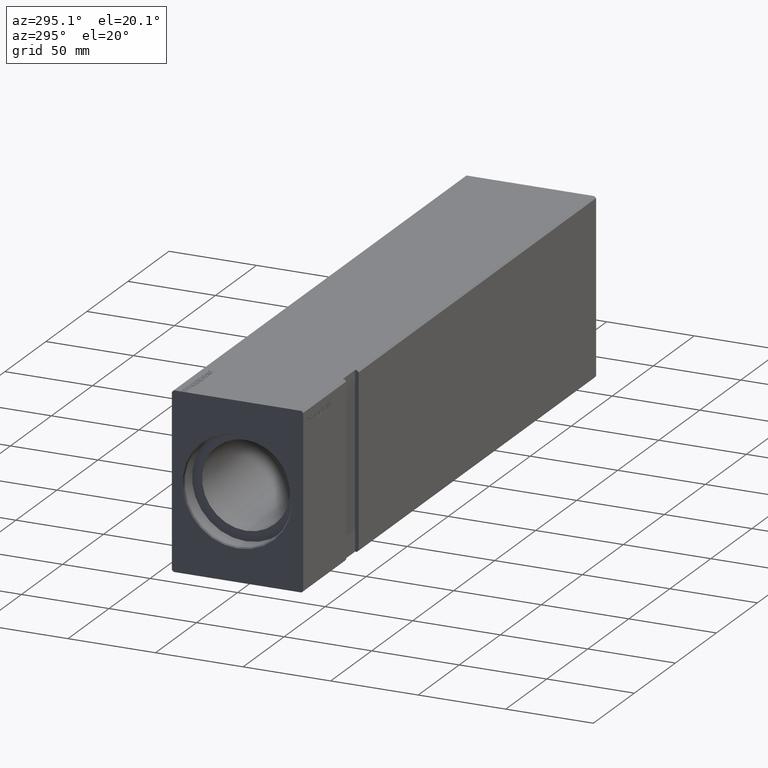
[diagram: clean part render]
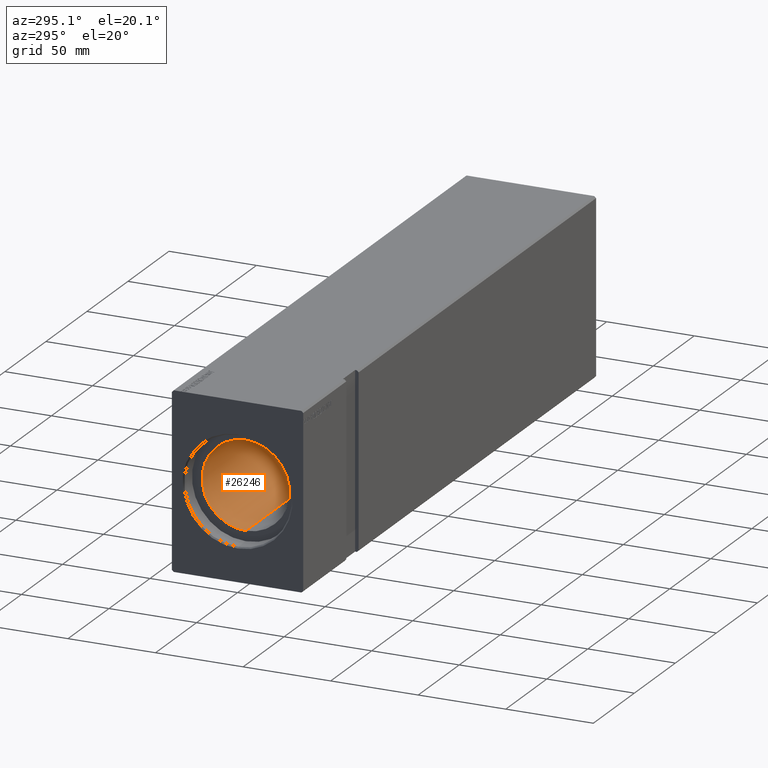
[diagram: same view with one face highlighted and labeled with its STEP entity id]
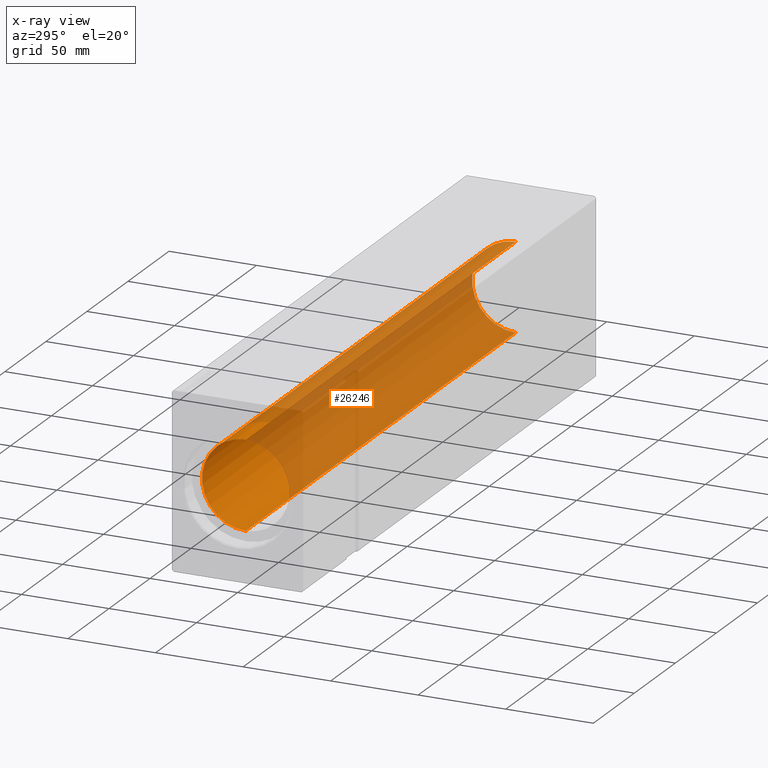
[diagram: x-ray of the same camera — body ghosted, the highlighted face saturated]
A machine part, auxiliary view. The second image highlights one B-rep face of the part: STEP entity #26246.
The next image is the same camera in x-ray: the body ghosted, the highlighted face saturated — about 79% of this face is hidden behind the body in this view.
In plain terms, the highlighted cylindrical surface (partial cylindrical patch) has radius 25 mm, axis along (-1, -0, -0).
Its self-contained STEP definition (entity closure, byte-faithful):
#1719 = VECTOR ( 'NONE', #36851, 1000.000000000000000 ) ;
#3383 = CARTESIAN_POINT ( 'NONE',  ( 10.00000000000000888, 0.000000000000000000, 25.00000000000000000 ) ) ;
#4503 = VERTEX_POINT ( 'NONE', #37775 ) ;
#4820 = EDGE_CURVE ( 'NONE', #4503, #38007, #17274, .T. ) ;
#7267 = DIRECTION ( 'NONE',  ( -1.000000000000000000, -0.000000000000000000, -0.000000000000000000 ) ) ;
#7453 = ORIENTED_EDGE ( 'NONE', *, *, #4820, .F. ) ;
#8208 = CARTESIAN_POINT ( 'NONE',  ( 339.1999999999999886, 3.061616997868383043E-15, -25.00000000000000000 ) ) ;
#10427 = CARTESIAN_POINT ( 'NONE',  ( 339.1999999999999886, 3.061616997868383043E-15, -25.00000000000000000 ) ) ;
#12182 = AXIS2_PLACEMENT_3D ( 'NONE', #32995, #7267, #17392 ) ;
#12417 = CARTESIAN_POINT ( 'NONE',  ( 339.1999999999999886, 0.000000000000000000, 0.000000000000000000 ) ) ;
#14181 = EDGE_CURVE ( 'NONE', #38007, #25153, #24229, .T. ) ;
#14225 = CARTESIAN_POINT ( 'NONE',  ( 10.00000000000000888, 0.000000000000000000, 0.000000000000000000 ) ) ;
#17159 = ORIENTED_EDGE ( 'NONE', *, *, #28742, .T. ) ;
#17274 = CIRCLE ( 'NONE', #19315, 25.00000000000000000 ) ;
#17392 = DIRECTION ( 'NONE',  ( 0.000000000000000000, 0.000000000000000000, 1.000000000000000000 ) ) ;
#18742 = DIRECTION ( 'NONE',  ( -1.000000000000000000, 0.000000000000000000, 0.000000000000000000 ) ) ;
#19315 = AXIS2_PLACEMENT_3D ( 'NONE', #12417, #18742, #28442 ) ;
#20310 = AXIS2_PLACEMENT_3D ( 'NONE', #14225, #36789, #37199 ) ;
#23563 = CARTESIAN_POINT ( 'NONE',  ( 339.1999999999999886, 0.000000000000000000, 25.00000000000000000 ) ) ;
#24229 = LINE ( 'NONE', #8208, #29605 ) ;
#24709 = EDGE_LOOP ( 'NONE', ( #41028, #7453, #29441, #17159 ) ) ;
#25153 = VERTEX_POINT ( 'NONE', #27337 ) ;
#26246 = ADVANCED_FACE ( 'NONE', ( #36585 ), #36170, .F. ) ;
#27145 = LINE ( 'NONE', #23563, #1719 ) ;
#27337 = CARTESIAN_POINT ( 'NONE',  ( 10.00000000000000888, 3.061616997868383043E-15, -25.00000000000000000 ) ) ;
#28442 = DIRECTION ( 'NONE',  ( 0.000000000000000000, 0.000000000000000000, 1.000000000000000000 ) ) ;
#28742 = EDGE_CURVE ( 'NONE', #30604, #25153, #40519, .T. ) ;
#29441 = ORIENTED_EDGE ( 'NONE', *, *, #41325, .T. ) ;
#29605 = VECTOR ( 'NONE', #40677, 1000.000000000000000 ) ;
#30604 = VERTEX_POINT ( 'NONE', #3383 ) ;
#32995 = CARTESIAN_POINT ( 'NONE',  ( 339.1999999999999886, 0.000000000000000000, 0.000000000000000000 ) ) ;
#36170 = CYLINDRICAL_SURFACE ( 'NONE', #12182, 25.00000000000000000 ) ;
#36585 = FACE_OUTER_BOUND ( 'NONE', #24709, .T. ) ;
#36789 = DIRECTION ( 'NONE',  ( -1.000000000000000000, 0.000000000000000000, 0.000000000000000000 ) ) ;
#36851 = DIRECTION ( 'NONE',  ( -1.000000000000000000, -0.000000000000000000, -0.000000000000000000 ) ) ;
#37199 = DIRECTION ( 'NONE',  ( 0.000000000000000000, 0.000000000000000000, 1.000000000000000000 ) ) ;
#37775 = CARTESIAN_POINT ( 'NONE',  ( 339.1999999999999886, 0.000000000000000000, 25.00000000000000000 ) ) ;
#38007 = VERTEX_POINT ( 'NONE', #10427 ) ;
#40519 = CIRCLE ( 'NONE', #20310, 25.00000000000000000 ) ;
#40677 = DIRECTION ( 'NONE',  ( -1.000000000000000000, -0.000000000000000000, -0.000000000000000000 ) ) ;
#41028 = ORIENTED_EDGE ( 'NONE', *, *, #14181, .F. ) ;
#41325 = EDGE_CURVE ( 'NONE', #4503, #30604, #27145, .T. ) ;